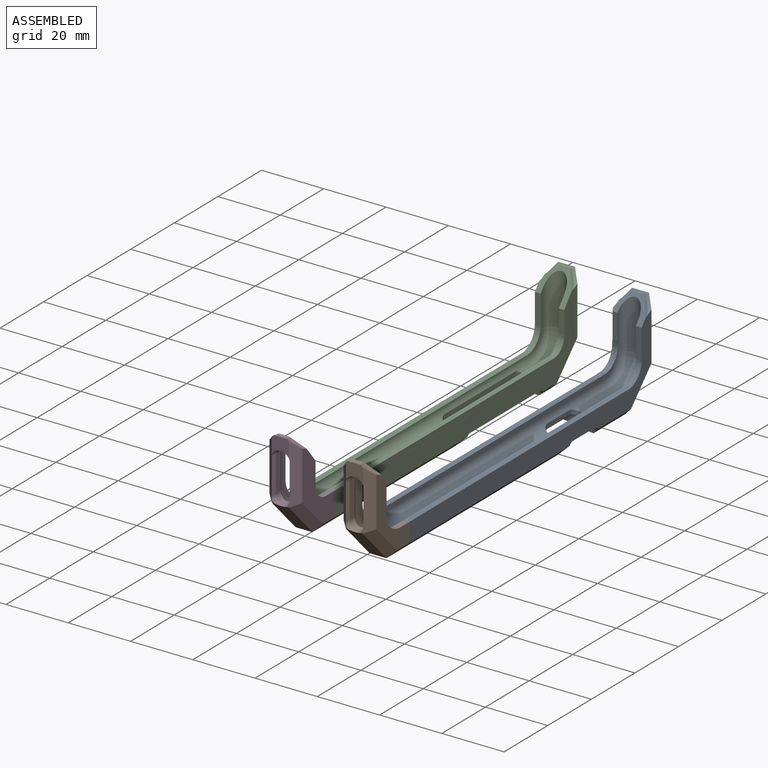
[diagram: assembled view]
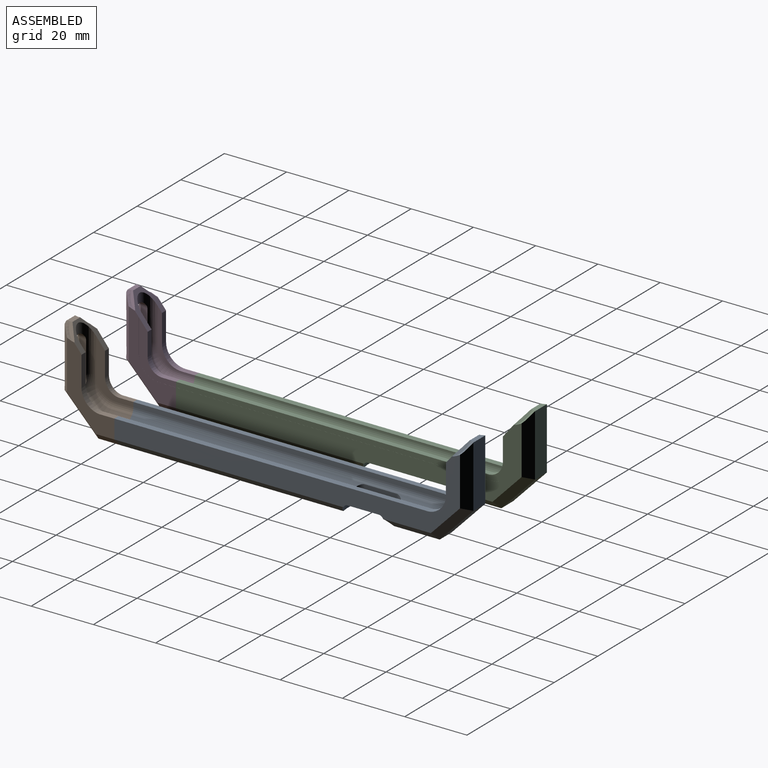
[diagram: assembled view, second angle]
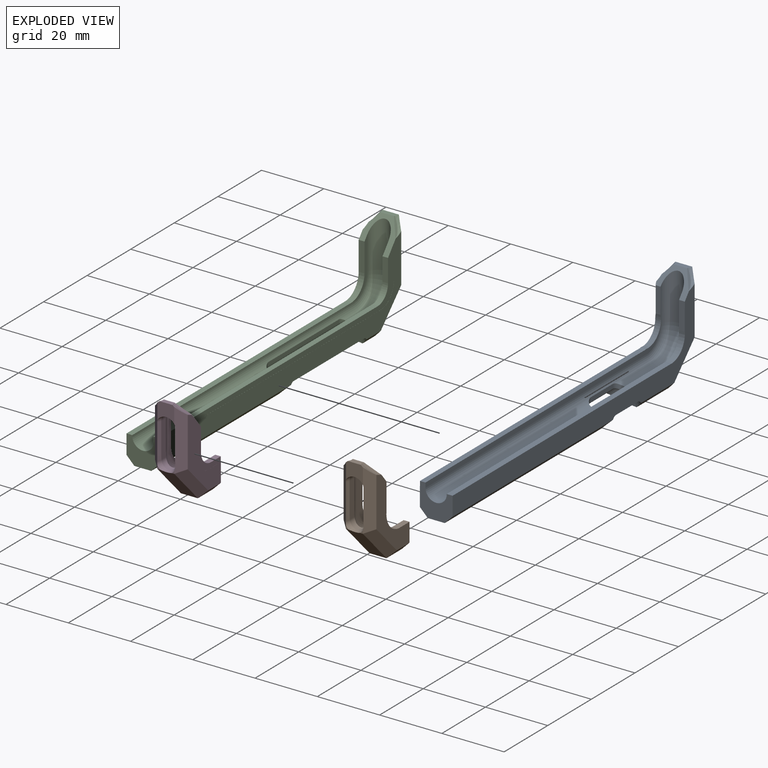
[diagram: exploded view]
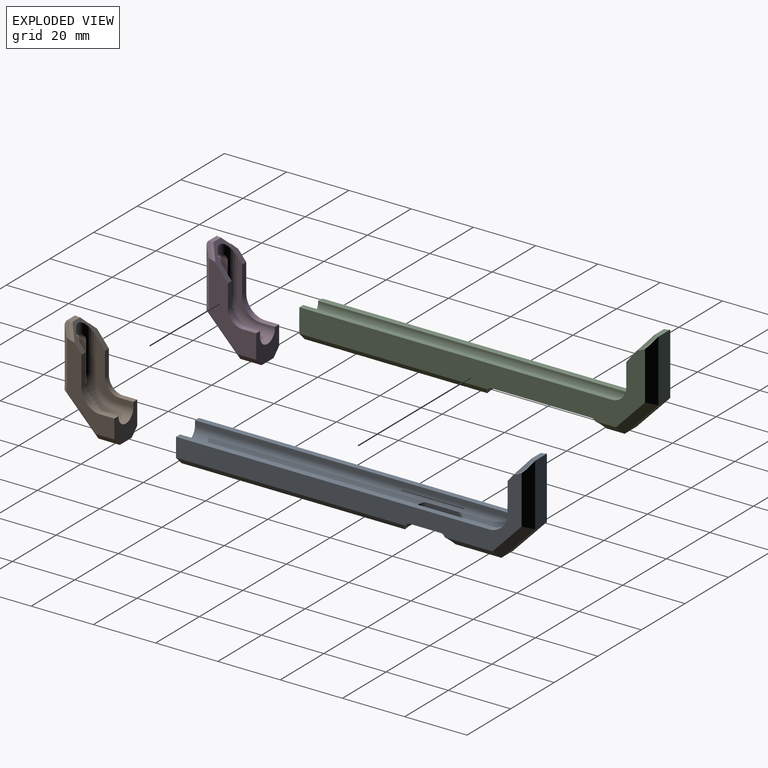
[diagram: exploded view, second angle]
ASSEMBLY  parts=4 mates=2
PART A: 58 faces, bbox 45.8x131.7x47.1 mm
  f0: plane 10.75x7.07mm, normal (-0.63,-0.78,0), area 27.3mm2, adj f1,f5,f6,f7,f8,f9,f15,f27
  f1: plane 107.74x17.21mm, normal (0,0,-1), area 24.9mm2, adj f0,f31,f32,f42,f50,f51,f52,f53
  f2: plane 15.59x6.28mm, normal (1,0,0), area 78.9mm2, adj f3,f19,f22,f23
  f3: plane 11.22x10.82mm, normal (0.69,0.72,0), area 84.7mm2, adj f2,f4,f18,f24
  f4: plane 19.84x5.44mm, normal (0,1,0), area 107.9mm2, adj f3,f7,f16,f17,f25
  f5: cylinder r=0.51mm len=8.54mm, axis (1,0,0), area 7mm2, adj f0,f9,f13,f28
  f6: plane 4.34x3.96mm, normal (-0.56,0,-0.83), area 4.9mm2, adj f0,f7,f26
  f7: plane 5.4x1.58mm, normal (-1,0,0), area 7.5mm2, adj f0,f4,f6,f8,f16,f25,f26
  f8: plane 4.39x4.01mm, normal (-0.56,0,0.83), area 5.1mm2, adj f0,f7,f16
  f9: plane 7.84x1.24mm, normal (0,-1,0), area 9.7mm2, adj f0,f5,f30,f31
  f10: cylinder r=0.51mm len=10.2mm, axis (0,-1,0), area 12.1mm2, adj f12,f14,f21,f33
  f11: cylinder r=0.51mm len=10.2mm, axis (0,-1,0), area 12.3mm2, adj f12,f14,f20,f35
  f12: bspline ~7.32x3.94mm, area 9.9mm2, adj f10,f11,f22,f36
  f13: bspline ~3.41x1.15mm, area 0.8mm2, adj f5,f29,f30,f57
  f14: bspline ~7.32x3.93mm, area 9.9mm2, adj f10,f11,f34,f39
  f15: bspline ~23.11x23.11mm, area 0.1mm2, adj f0,f16,f49
  f16: bspline ~23.11x23.11mm, area 5.8mm2, adj f4,f7,f8,f15,f17,f49
  f17: plane 19.78x2.54mm, normal (0,0.71,0.71), area 63mm2, adj f4,f16,f18,f49
  f18: plane 12.24x11.9mm, normal (0.49,0.51,0.71), area 52.2mm2, adj f3,f17,f19,f49
  f19: plane 16.98x3.13mm, normal (0.71,0,0.71), area 53.1mm2, adj f2,f18,f22,f49
  f20: plane 10.2x1.56mm, normal (0.72,0,-0.7), area 22.1mm2, adj f11,f22,f39,f49
  f21: plane 10.2x1.73mm, normal (0.69,0,0.73), area 24.3mm2, adj f10,f22,f39,f48
  f22: bspline ~16.25x7.94mm, area 45.7mm2, adj f2,f12,f19,f20,f21,f23,f48,f49
  f23: plane 17.36x3.2mm, normal (0.71,0,-0.71), area 53.6mm2, adj f2,f22,f24,f48
  f24: plane 12.24x11.9mm, normal (0.49,0.51,-0.71), area 52.2mm2, adj f3,f23,f25,f48
  f25: plane 19.84x2.54mm, normal (0,0.71,-0.71), area 63.3mm2, adj f4,f7,f24,f26,f48
  f26: bspline ~23.11x23.11mm, area 5.3mm2, adj f6,f7,f25,f27,f48
  f27: bspline ~23.11x23.11mm, area 0mm2, adj f0,f26,f28,f48
  f28: plane 8.54x0.06mm, normal (0,-0.99,-0.12), area 0.5mm2, adj f5,f27,f29,f48
  f29: bspline ~6.39x2.18mm, area 0.1mm2, adj f13,f28,f48,f57
  f30: cylinder r=4.1mm len=1.24mm, axis (0,0,1), area 0.4mm2, adj f9,f13,f31,f57
  f31: cylinder r=3.43mm len=15.1mm, axis (1,0,0), area 144.9mm2, adj f0,f1,f9,f30,f32,f57
  f32: torus R=6.37mm, axis (0,0,-1), area 144.5mm2, adj f1,f31,f42,f43,f57
  f33: plane 10.2x1.33mm, normal (0,0,1), area 13.6mm2, adj f10,f34,f36,f42
  f34: cylinder r=2.79mm len=5.59mm, axis (-1,0,0), area 11.4mm2, adj f14,f33,f35,f42
  f35: plane 10.2x1.39mm, normal (0,0,-1), area 14.2mm2, adj f11,f34,f36,f42
  f36: cylinder r=2.79mm len=5.59mm, axis (-1,0,0), area 11.4mm2, adj f12,f33,f35,f42
  f37: cylinder r=6.37mm len=6.33mm, axis (0,0,-1), area 0.2mm2, adj f41,f44,f48,f57
  f38: cylinder r=4.77mm len=1.78mm, axis (0,0,1), area 2.8mm2, adj f40,f41,f43,f57
  f39: bspline ~16.25x7.94mm, area 45.7mm2, adj f14,f20,f21,f45,f46,f47,f48,f49
  f40: plane 99.7x1.78mm, normal (-1,0,0), area 177.3mm2, adj f38,f41,f43,f50
  f41: plane 107.7x5.68mm, normal (0,0,-1), area 165mm2, adj f37,f38,f40,f44,f50,f57
  f42: cylinder r=3.43mm len=101.37mm, axis (0,-1,0), area 1024mm2, adj f1,f32,f33,f34,f35,f36,f43,f50
  f43: plane 107.7x5.68mm, normal (0,0,1), area 165mm2, adj f32,f38,f40,f42,f50,f57
  f44: plane 101.37x0.02mm, normal (-1,0,0), area 2.1mm2, adj f37,f41,f48,f50
  f45: plane 74.13x3.14mm, normal (0.71,0,0.71), area 260.3mm2, adj f39,f47,f49,f50
  f46: plane 74.51x3.2mm, normal (0.71,0,-0.71), area 260.8mm2, adj f39,f47,f48,f50
  f47: plane 72.74x6.29mm, normal (1,0,0), area 389.6mm2, adj f39,f45,f46,f50
  f48: plane 111.22x25.47mm, normal (0,0,-1), area 681mm2, adj f21,f22,f23,f24,f25,f26,f27,f28
  f49: plane 111.34x25.52mm, normal (0,0,1), area 682.3mm2, adj f15,f16,f17,f18,f19,f20,f22,f39
  f50: plane 10.52x10.11mm, normal (0,-1,0), area 68mm2, adj f1,f40,f41,f42,f43,f44,f45,f46
  f51: plane 99.61x1.87mm, normal (-1,0,0), area 186mm2, adj f1,f50,f53,f55,f56
  f52: plane 6.88x1.88mm, normal (0,-1,0), area 12.8mm2, adj f1,f53,f54,f56
  f53: cylinder r=6.27mm len=6.94mm, axis (0,0,1), area 20.9mm2, adj f1,f51,f52,f56
  f54: plane 1.89x1.88mm, normal (0,-1,0), area 3.5mm2, adj f0,f1,f52,f56
  f55: bspline ~0.09x0.04mm, area 0mm2, adj f50,f51,f56
  f56: plane 107.74x17.22mm, normal (0,0,1), area 25mm2, adj f0,f49,f51,f52,f53,f54,f55
  f57: cylinder r=5.92mm len=7.53mm, axis (0,0,-1), area 20.7mm2, adj f13,f29,f30,f31,f32,f37,f38,f41
PART B: 51 faces, bbox 39.8x36x47.2 mm
  f0: plane 17.45x11.89mm, normal (0,0,-1), area 22.2mm2, adj f13,f16,f17,f18,f44,f45,f46,f47
  f1: plane 25.55x15.24mm, normal (0,0,1), area 116.6mm2, adj f33,f35,f39,f40,f43,f44,f50
  f2: plane 5.7x5.46mm, normal (0,-1,0), area 24.1mm2, adj f7,f12,f34,f35,f42,f43
  f3: plane 1.07x0.98mm, normal (0,-1,0), area 0.4mm2, adj f5,f31,f43
  f4: plane 25.54x15.19mm, normal (0,0,-1), area 116.7mm2, adj f7,f8,f9,f10,f11,f37,f38,f42
  f5: plane 12.21x11.81mm, normal (0.69,-0.72,0), area 83.4mm2, adj f3,f31,f36,f38,f40,f41
  f6: plane 9.77x1.02mm, normal (0,-0.45,0.89), area 11.2mm2, adj f21,f32,f34,f42
  f7: bspline ~23.11x23.11mm, area 5.6mm2, adj f2,f4,f8,f12,f27,f42
  f8: bspline ~23.11x23.11mm, area 0.1mm2, adj f4,f7,f9,f13
  f9: plane 11.08x0.02mm, normal (0,1,0), area 0.2mm2, adj f4,f8,f10,f19
  f10: cylinder r=6.37mm len=6.37mm, axis (0,0,-1), area 0.2mm2, adj f4,f9,f11,f19
  f11: plane 5.52x0.02mm, normal (-1,0,0), area 0.1mm2, adj f4,f10,f19,f44
  f12: plane 4.13x1.79mm, normal (-1,0,0), area 6.5mm2, adj f2,f7,f13,f27,f28,f35
  f13: plane 10.5x8.54mm, normal (-0.63,0.78,0), area 32.4mm2, adj f0,f8,f12,f15,f16,f19,f24,f27
  f14: cylinder r=4.73mm len=1.78mm, axis (0,0,-1), area 1.5mm2, adj f15,f19,f24,f25
  f15: plane 17.45x11.89mm, normal (0,0,1), area 54.1mm2, adj f13,f14,f16,f17,f18,f24,f25,f26
  f16: cylinder r=3.43mm len=15.36mm, axis (-1,0,0), area 89.5mm2, adj f0,f13,f15,f17,f20,f21,f23
  f17: torus R=6.37mm, axis (0,0,-1), area 127.5mm2, adj f0,f15,f16,f18,f21,f22,f23
  f18: cylinder r=3.43mm len=6.85mm, axis (0,-1,0), area 59.4mm2, adj f0,f15,f17,f44
  f19: plane 17.45x11.89mm, normal (0,0,-1), area 54.1mm2, adj f9,f10,f11,f13,f14,f24,f25,f26
  f20: cylinder r=2.32mm len=4.65mm, axis (0,1,0), area 15.6mm2, adj f16,f21,f23,f34
  f21: plane 11.25x2.27mm, normal (0,0,1), area 24.1mm2, adj f6,f16,f17,f20,f22,f32
  f22: cylinder r=2.32mm len=4.65mm, axis (0,1,0), area 15.8mm2, adj f17,f21,f23,f31
  f23: plane 11.25x2.26mm, normal (0,0,-1), area 24.1mm2, adj f16,f17,f20,f22,f29,f30
  f24: plane 7.58x1.78mm, normal (0,1,0), area 13.5mm2, adj f13,f14,f15,f19
  f25: cylinder r=4.79mm len=4.14mm, axis (0,0,1), area 11mm2, adj f14,f15,f19,f26
  f26: plane 4.87x1.78mm, normal (-1,0,0), area 8.7mm2, adj f15,f19,f25,f44
  f27: plane 3.88x3.76mm, normal (-0.67,0,-0.75), area 5.7mm2, adj f7,f12,f13
  f28: plane 3.9x3.79mm, normal (-0.67,0,0.75), area 5.8mm2, adj f12,f13,f35
  f29: plane 9.77x1.07mm, normal (0,-0.45,-0.9), area 11.7mm2, adj f23,f30,f34,f43
  f30: cone r=11.03mm half-angle=63.5deg, axis (0,0,1), area 1.9mm2, adj f23,f29,f31,f43
  f31: bspline ~10.32x6.08mm, area 11.6mm2, adj f3,f5,f22,f30,f32,f41,f42,f43
  f32: cone r=11.02mm half-angle=63.4deg, axis (0,0,-1), area 1.8mm2, adj f6,f21,f31,f42
  f33: bspline ~23.11x23.11mm, area 0.2mm2, adj f1,f13,f35
  f34: bspline ~10.32x6.9mm, area 7.2mm2, adj f2,f6,f20,f29,f42,f43
  f35: bspline ~23.11x23.11mm, area 6mm2, adj f1,f2,f12,f28,f33,f43
  f36: plane 6.91x5.44mm, normal (1,0,0), area 37.5mm2, adj f5,f37,f39,f44
  f37: plane 6.91x2.54mm, normal (0.71,0,-0.71), area 22.9mm2, adj f4,f36,f38,f44
  f38: plane 12.24x11.9mm, normal (0.49,-0.51,-0.71), area 52.2mm2, adj f4,f5,f37,f42
  f39: plane 6.91x2.54mm, normal (0.71,0,0.71), area 22.9mm2, adj f1,f36,f40,f44
  f40: plane 12.24x11.9mm, normal (0.49,-0.51,0.71), area 52.2mm2, adj f1,f5,f39,f43
  f41: plane 0.9x0.89mm, normal (0,-1,0), area 0.3mm2, adj f5,f31,f42
  f42: plane 19.45x2.62mm, normal (0,-0.71,-0.71), area 60mm2, adj f2,f4,f6,f7,f31,f32,f34,f38
  f43: plane 19.35x2.61mm, normal (0,-0.71,0.71), area 60.8mm2, adj f1,f2,f3,f29,f30,f31,f34,f35
  f44: plane 10.52x10.11mm, normal (0,1,0), area 68mm2, adj f0,f1,f4,f11,f15,f18,f19,f26
  f45: plane 6.93x1.87mm, normal (0,1,0), area 12.9mm2, adj f0,f46,f48,f50
  f46: cylinder r=6.29mm len=6.93mm, axis (0,0,1), area 18.5mm2, adj f0,f45,f47,f50
  f47: plane 4.96x1.87mm, normal (-1,0,0), area 9.3mm2, adj f0,f44,f46,f49,f50
  f48: plane 1.87x1.87mm, normal (0,1,0), area 3.5mm2, adj f0,f13,f45,f50
  f49: bspline ~0.09x0.04mm, area 0mm2, adj f44,f47,f50
  f50: plane 17.45x11.9mm, normal (0,0,1), area 22.2mm2, adj f1,f13,f45,f46,f47,f48,f49
PART C: 203 faces, bbox 45.8x131.7x47.1 mm
  f0: plane 107.74x17.21mm, normal (0,0,-1), area 41.8mm2, adj f1,f2,f9,f28,f37,f197,f198,f199
  f1: plane 10.5x8.65mm, normal (0.63,-0.78,0), area 35.3mm2, adj f0,f7,f8,f24,f26,f28,f39,f41
  f2: plane 10.52x10.21mm, normal (0,-1,0), area 68.5mm2, adj f0,f3,f4,f5,f6,f7,f8,f9
  f3: plane 11.84x5.47mm, normal (-1,0,0), area 47.1mm2, adj f2,f4,f5,f64,f65,f66,f67,f68
  f4: plane 61.01x3.15mm, normal (-0.71,0,0.71), area 212.9mm2, adj f2,f3,f6,f13,f14,f15,f22,f54
  f5: plane 61.1x3.18mm, normal (-0.71,0,-0.71), area 212.6mm2, adj f2,f3,f12,f13,f14,f15,f16,f17
  f6: plane 111.3x25.48mm, normal (0,0,1), area 667mm2, adj f2,f4,f19,f21,f22,f23,f24,f48
  f7: plane 107.74x17.21mm, normal (0,0,-1), area 209.3mm2, adj f1,f2,f10,f11,f38,f39,f40,f44
  f8: plane 107.74x17.21mm, normal (0,0,1), area 209.3mm2, adj f1,f2,f9,f10,f28,f37,f38,f39
  f9: cylinder r=3.43mm len=101.37mm, axis (0,1,0), area 879.2mm2, adj f0,f2,f8,f29,f30,f31,f32,f37
  f10: plane 100.21x1.78mm, normal (1,0,0), area 178.2mm2, adj f2,f7,f8,f38
  f11: plane 101.37x0.02mm, normal (1,0,0), area 2.1mm2, adj f2,f7,f12,f45
  f12: plane 111.27x25.52mm, normal (0,0,-1), area 670.3mm2, adj f2,f5,f11,f21,f22,f27,f43,f44
  f13: plane 11.2x5.47mm, normal (-1,0,0), area 33.3mm2, adj f4,f5,f54,f55,f56,f57,f58,f59
  f14: plane 31.59x6.32mm, normal (-1,0,0), area 117.6mm2, adj f4,f5,f22,f90,f91,f92,f93,f94
  f15: plane 10.36x5.51mm, normal (-1,0,0), area 38mm2, adj f4,f5,f85,f86,f87,f88,f100,f101
  f16: plane 2.88x1.67mm, normal (-1,0,0), area 3.9mm2, adj f5,f185,f191,f192
  f17: plane 2.88x1.67mm, normal (-1,0,0), area 3.9mm2, adj f5,f171,f177,f178
  f18: plane 2.57x2.17mm, normal (-1,0,0), area 3.4mm2, adj f5,f153,f164,f165
  f19: bspline ~23.11x23.11mm, area 5.8mm2, adj f6,f24,f26,f42,f47,f50
  f20: plane 11.22x10.82mm, normal (-0.69,0.72,0), area 84.7mm2, adj f25,f47,f49,f52
  f21: bspline ~16.27x7.89mm, area 45.8mm2, adj f6,f12,f23,f25,f34,f46,f48,f51
  f22: bspline ~16.27x7.89mm, area 45.8mm2, adj f4,f5,f6,f12,f14,f23,f36,f46
  f23: plane 32.32x1.6mm, normal (-0.71,0,-0.7), area 73mm2, adj f6,f21,f22,f33
  f24: bspline ~23.11x23.11mm, area 0.1mm2, adj f1,f6,f19
  f25: plane 6.68x6.28mm, normal (-1,0,0), area 30.6mm2, adj f20,f21,f48,f51
  f26: plane 5.4x1.58mm, normal (1,0,0), area 7.5mm2, adj f1,f19,f27,f41,f42,f47,f53
  f27: bspline ~23.11x23.11mm, area 5.3mm2, adj f12,f26,f41,f43,f53
  f28: cylinder r=3.43mm len=15.1mm, axis (1,0,0), area 145.7mm2, adj f0,f1,f8,f37
  f29: cylinder r=2.8mm len=5.59mm, axis (1,0,0), area 11.4mm2, adj f9,f30,f32,f34
  f30: plane 32.32x1.37mm, normal (0,0,-1), area 44.2mm2, adj f9,f29,f31,f33
  f31: cylinder r=2.8mm len=5.59mm, axis (1,0,0), area 11.4mm2, adj f9,f30,f32,f36
  f32: plane 32.32x1.35mm, normal (0,0,1), area 43.6mm2, adj f9,f29,f31,f35
  f33: cylinder r=0.51mm len=32.32mm, axis (0,1,0), area 38.7mm2, adj f23,f30,f34,f36
  f34: bspline ~7.33x3.93mm, area 9.9mm2, adj f21,f29,f33,f35
  f35: cylinder r=0.51mm len=32.32mm, axis (0,1,0), area 38.5mm2, adj f32,f34,f36,f46
  f36: bspline ~7.33x3.94mm, area 9.9mm2, adj f22,f31,f33,f35
  f37: torus R=6.37mm, axis (0,0,-1), area 144.5mm2, adj f0,f8,f9,f28
  f38: cylinder r=4.76mm len=4.13mm, axis (0,0,-1), area 8.9mm2, adj f7,f8,f10,f40
  f39: plane 7.39x1.78mm, normal (0,-1,0), area 13.1mm2, adj f1,f7,f8,f40
  f40: cylinder r=4.73mm len=2.44mm, axis (0,0,1), area 4.6mm2, adj f7,f8,f38,f39
  f41: plane 4.34x3.96mm, normal (0.56,0,-0.83), area 4.9mm2, adj f1,f26,f27
  f42: plane 4.39x4.01mm, normal (0.56,0,0.83), area 5.1mm2, adj f1,f19,f26
  f43: bspline ~23.11x23.11mm, area 0mm2, adj f1,f12,f27,f44
  f44: plane 10.84x0.02mm, normal (0,-1,0), area 0.2mm2, adj f7,f12,f43,f45
  f45: cylinder r=6.37mm len=6.37mm, axis (0,0,-1), area 0.2mm2, adj f7,f11,f12,f44
  f46: plane 32.32x1.63mm, normal (-0.7,0,0.72), area 73.5mm2, adj f12,f21,f22,f35
  f47: plane 19.84x5.44mm, normal (0,1,0), area 107.9mm2, adj f19,f20,f26,f50,f53
  f48: plane 8.23x3.16mm, normal (-0.71,0,0.71), area 21.4mm2, adj f6,f21,f25,f49
  f49: plane 12.24x11.9mm, normal (-0.49,0.51,0.71), area 52.2mm2, adj f6,f20,f48,f50
  f50: plane 19.78x2.54mm, normal (0,0.71,0.71), area 63mm2, adj f6,f19,f47,f49
  f51: plane 8.31x3.17mm, normal (-0.71,0,-0.71), area 21.5mm2, adj f12,f21,f25,f52
  f52: plane 12.24x11.9mm, normal (-0.49,0.51,-0.71), area 52.2mm2, adj f12,f20,f51,f53
  f53: plane 19.84x2.54mm, normal (0,0.71,-0.71), area 63.3mm2, adj f12,f26,f27,f47,f52
  f54: extruded ~1.3x0.76mm, area 1mm2, adj f4,f13,f55,f73,f74
  f55: extruded ~1x0.76mm, area 0.9mm2, adj f13,f54,f56,f74
  f56: extruded ~0.97x0.76mm, area 0.8mm2, adj f13,f55,f57,f74
  f57: extruded ~1.1x0.76mm, area 1mm2, adj f13,f56,f58,f74
  f58: extruded ~1.05x0.76mm, area 0.9mm2, adj f13,f57,f59,f74
  f59: extruded ~0.76x0.59mm, area 0.5mm2, adj f13,f58,f60,f74
  f60: extruded ~1.29x0.89mm, area 1.4mm2, adj f13,f59,f61,f74
  f61: extruded ~1.53x0.76mm, area 1.2mm2, adj f13,f60,f62,f74
  f62: plane 0.76x0.66mm, normal (0,-1,0), area 0.5mm2, adj f13,f61,f63,f74
  f63: extruded ~1.53x0.76mm, area 1.2mm2, adj f5,f13,f62,f64,f74
  f64: extruded ~1.45x0.76mm, area 1.1mm2, adj f3,f5,f63,f65,f74
  f65: extruded ~1.11x0.76mm, area 1mm2, adj f3,f64,f66,f74
  f66: extruded ~0.89x0.76mm, area 0.7mm2, adj f3,f65,f67,f74
  f67: extruded ~1.21x0.76mm, area 1.1mm2, adj f3,f66,f68,f74
  f68: extruded ~1x0.76mm, area 0.9mm2, adj f3,f67,f69,f74
  f69: extruded ~0.76x0.6mm, area 0.5mm2, adj f3,f68,f70,f74
  f70: extruded ~1.08x0.77mm, area 1.2mm2, adj f3,f69,f71,f74
  f71: extruded ~1.33x0.76mm, area 1mm2, adj f3,f70,f72,f74
  f72: plane 0.76x0.61mm, normal (0,0.93,0.36), area 0.5mm2, adj f3,f71,f73,f74
  f73: extruded ~1.53x0.76mm, area 1.2mm2, adj f3,f4,f54,f72,f74
  f74: plane 5.54x3.49mm, normal (-1,0,0), area 7.3mm2, adj f54,f55,f56,f57,f58,f59,f60,f61
  f75: extruded ~1.32x0.76mm, area 1mm2, adj f5,f13,f76,f88,f89
  f76: plane 0.76x0.6mm, normal (0,1,0), area 0.5mm2, adj f13,f75,f77,f89
  f77: extruded ~1.21x0.76mm, area 0.9mm2, adj f13,f76,f78,f89
  f78: extruded ~1.29x0.76mm, area 1.1mm2, adj f13,f77,f79,f89
  f79: extruded ~1.61x0.76mm, area 1.3mm2, adj f13,f78,f80,f89
  f80: extruded ~1.58x0.76mm, area 1.3mm2, adj f13,f79,f81,f89
  f81: extruded ~1.27x0.76mm, area 1.1mm2, adj f13,f80,f82,f89
  f82: extruded ~1.12x0.76mm, area 0.9mm2, adj f13,f81,f83,f89
  f83: plane 0.76x0.58mm, normal (0,0.89,0.45), area 0.5mm2, adj f13,f82,f84,f89
  f84: extruded ~1.41x0.76mm, area 1.1mm2, adj f4,f13,f83,f85,f89
  f85: extruded ~1.8x0.76mm, area 1.5mm2, adj f4,f15,f84,f86,f89
  f86: extruded ~2.02x0.76mm, area 1.7mm2, adj f15,f85,f87,f89
  f87: extruded ~2.05x0.76mm, area 1.7mm2, adj f15,f86,f88,f89
  f88: extruded ~1.74x0.76mm, area 1.5mm2, adj f5,f15,f75,f87,f89
  f89: plane 5.54x3.88mm, normal (-1,0,0), area 6.6mm2, adj f75,f76,f77,f78,f79,f80,f81,f82
  f90: extruded ~1.3x0.76mm, area 1mm2, adj f4,f14,f91,f109,f110
  f91: extruded ~1x0.76mm, area 0.9mm2, adj f14,f90,f92,f110
  f92: extruded ~0.97x0.76mm, area 0.8mm2, adj f14,f91,f93,f110
  f93: extruded ~1.1x0.76mm, area 1mm2, adj f14,f92,f94,f110
  f94: extruded ~1.05x0.76mm, area 0.9mm2, adj f14,f93,f95,f110
  f95: extruded ~0.76x0.59mm, area 0.5mm2, adj f14,f94,f96,f110
  f96: extruded ~1.29x0.89mm, area 1.4mm2, adj f14,f95,f97,f110
  f97: extruded ~1.53x0.76mm, area 1.2mm2, adj f14,f96,f98,f110
  f98: plane 0.76x0.66mm, normal (0,-1,0), area 0.5mm2, adj f14,f97,f99,f110
  f99: extruded ~1.53x0.76mm, area 1.2mm2, adj f5,f14,f98,f100,f110
  f100: extruded ~1.45x0.76mm, area 1.1mm2, adj f5,f15,f99,f101,f110
  f101: extruded ~1.11x0.76mm, area 1mm2, adj f15,f100,f102,f110
  f102: extruded ~0.89x0.76mm, area 0.7mm2, adj f15,f101,f103,f110
  f103: extruded ~1.21x0.76mm, area 1.1mm2, adj f15,f102,f104,f110
  f104: extruded ~1x0.76mm, area 0.9mm2, adj f15,f103,f105,f110
  f105: extruded ~0.76x0.6mm, area 0.5mm2, adj f15,f104,f106,f110
  f106: extruded ~1.08x0.77mm, area 1.2mm2, adj f15,f105,f107,f110
  f107: extruded ~1.33x0.76mm, area 1mm2, adj f15,f106,f108,f110
  f108: plane 0.76x0.61mm, normal (0,0.93,0.36), area 0.5mm2, adj f15,f107,f109,f110
  f109: extruded ~1.53x0.76mm, area 1.2mm2, adj f4,f15,f90,f108,f110
  f110: plane 5.54x3.49mm, normal (-1,0,0), area 7.3mm2, adj f90,f91,f92,f93,f94,f95,f96,f97
  f111: extruded ~1.39x0.76mm, area 1.1mm2, adj f5,f14,f112,f120,f121
  f112: extruded ~1.27x0.76mm, area 1.1mm2, adj f14,f111,f113,f121
  f113: plane 3.73x0.76mm, normal (0,1,0), area 2.8mm2, adj f14,f112,f114,f121
  f114: plane 0.76x0.69mm, normal (0,0,-1), area 0.5mm2, adj f14,f113,f115,f121
  f115: plane 3.74x0.76mm, normal (0,-1,0), area 2.8mm2, adj f14,f114,f116,f121
  f116: extruded ~0.83x0.76mm, area 0.7mm2, adj f14,f115,f117,f121
  f117: extruded ~0.94x0.76mm, area 0.8mm2, adj f14,f116,f118,f121
  f118: extruded ~1.14x0.76mm, area 0.9mm2, adj f14,f117,f119,f121
  f119: plane 0.76x0.61mm, normal (0,-1,0), area 0.5mm2, adj f14,f118,f120,f121
  f120: extruded ~1.2x0.76mm, area 0.9mm2, adj f5,f14,f111,f119,f121
  f121: plane 5.47x3.1mm, normal (-1,0,0), area 4.9mm2, adj f111,f112,f113,f114,f115,f116,f117,f118
  f122: plane 5.39x0.76mm, normal (0,-1,0), area 4.1mm2, adj f14,f123,f133,f134
  f123: plane 3.1x0.76mm, normal (0,0,1), area 2.4mm2, adj f5,f122,f124,f134
  f124: plane 0.76x0.61mm, normal (0,1,0), area 0.5mm2, adj f14,f123,f125,f134
  f125: plane 2.42x0.76mm, normal (0,0,-1), area 1.8mm2, adj f14,f124,f126,f134
  f126: plane 1.92x0.76mm, normal (0,1,0), area 1.5mm2, adj f14,f125,f127,f134
  f127: plane 2.28x0.76mm, normal (0,0,1), area 1.7mm2, adj f14,f126,f128,f134
  f128: plane 0.76x0.6mm, normal (0,1,0), area 0.5mm2, adj f14,f127,f129,f134
  f129: plane 2.28x0.76mm, normal (0,0,-1), area 1.7mm2, adj f14,f128,f130,f134
  f130: plane 1.67x0.76mm, normal (0,1,0), area 1.3mm2, adj f14,f129,f131,f134
  f131: plane 2.42x0.76mm, normal (0,0,1), area 1.8mm2, adj f14,f130,f132,f134
  f132: plane 0.76x0.61mm, normal (0,1,0), area 0.5mm2, adj f14,f131,f133,f134
  f133: plane 3.1x0.76mm, normal (0,0,-1), area 2.4mm2, adj f14,f122,f132,f134
  f134: plane 5.39x3.1mm, normal (-1,0,0), area 8mm2, adj f122,f123,f124,f125,f126,f127,f128,f129
  f135: plane 1.95x0.76mm, normal (0,1,0.08), area 1.5mm2, adj f14,f136,f138,f139
  f136: plane 0.87x0.76mm, normal (0,0,-1), area 0.7mm2, adj f14,f135,f137,f139
  f137: plane 1.95x0.76mm, normal (0,-1,0.08), area 1.5mm2, adj f14,f136,f138,f139
  f138: plane 0.76x0.57mm, normal (0,0,1), area 0.4mm2, adj f14,f135,f137,f139
  f139: plane 1.95x0.87mm, normal (-1,0,0), area 1.4mm2, adj f135,f136,f137,f138
  f140: plane 5.39x0.76mm, normal (0,-1,0), area 4.1mm2, adj f3,f141,f151,f152
  f141: plane 3.1x0.76mm, normal (0,0,1), area 2.4mm2, adj f5,f140,f142,f152
  f142: plane 0.76x0.61mm, normal (0,1,0), area 0.5mm2, adj f3,f141,f143,f152
  f143: plane 2.42x0.76mm, normal (0,0,-1), area 1.8mm2, adj f3,f142,f144,f152
  f144: plane 1.92x0.76mm, normal (0,1,0), area 1.5mm2, adj f3,f143,f145,f152
  f145: plane 2.28x0.76mm, normal (0,0,1), area 1.7mm2, adj f3,f144,f146,f152
  f146: plane 0.76x0.6mm, normal (0,1,0), area 0.5mm2, adj f3,f145,f147,f152
  f147: plane 2.28x0.76mm, normal (0,0,-1), area 1.7mm2, adj f3,f146,f148,f152
  f148: plane 1.67x0.76mm, normal (0,1,0), area 1.3mm2, adj f3,f147,f149,f152
  f149: plane 2.42x0.76mm, normal (0,0,1), area 1.8mm2, adj f3,f148,f150,f152
  f150: plane 0.76x0.61mm, normal (0,1,0), area 0.5mm2, adj f3,f149,f151,f152
  f151: plane 3.1x0.76mm, normal (0,0,-1), area 2.4mm2, adj f3,f140,f150,f152
  f152: plane 5.39x3.1mm, normal (-1,0,0), area 8mm2, adj f140,f141,f142,f143,f144,f145,f146,f147
  f153: plane 2.57x1.66mm, normal (0,-0.84,0.54), area 2.3mm2, adj f18,f154,f165,f166
  f154: plane 0.78x0.76mm, normal (0,0,1), area 0.6mm2, adj f5,f153,f155,f166
  f155: plane 3.04x1.99mm, normal (0,0.84,-0.55), area 2.8mm2, adj f14,f154,f156,f166
  f156: plane 2.35x1.92mm, normal (0,0.77,0.63), area 2.3mm2, adj f14,f155,f157,f166
  f157: plane 0.77x0.76mm, normal (0,0,-1), area 0.6mm2, adj f14,f156,f158,f166
  f158: plane 2.08x1.67mm, normal (0,-0.78,-0.63), area 2mm2, adj f14,f157,f159,f166
  f159: plane 0.76x0.62mm, normal (0,-0.81,-0.58), area 0.6mm2, adj f14,f158,f160,f166
  f160: plane 2.7x0.76mm, normal (0,1,0), area 2.1mm2, adj f14,f159,f161,f166
  f161: plane 0.76x0.69mm, normal (0,0,-1), area 0.5mm2, adj f14,f160,f162,f166
  f162: plane 5.39x0.76mm, normal (0,-1,0), area 4.1mm2, adj f14,f161,f163,f166
  f163: plane 0.76x0.69mm, normal (0,0,1), area 0.5mm2, adj f5,f162,f164,f166
  f164: plane 2.15x0.76mm, normal (0,1,0), area 1.6mm2, adj f18,f163,f165,f166
  f165: plane 0.76x0.52mm, normal (0,0.63,0.78), area 0.5mm2, adj f18,f153,f164,f166
  f166: plane 5.39x3.64mm, normal (-1,0,0), area 8mm2, adj f153,f154,f155,f156,f157,f158,f159,f160
  f167: plane 1.56x0.76mm, normal (0,-0.95,0.3), area 1.2mm2, adj f168,f179,f180,f195
  f168: plane 1.42x0.76mm, normal (0,0,-1), area 1.1mm2, adj f167,f169,f180,f195
  f169: plane 1.72x0.76mm, normal (0,0.96,0.29), area 1.4mm2, adj f168,f170,f180,f195
  f170: extruded ~0.76x0.68mm, area 0.5mm2, adj f169,f179,f180,f195
  f171: plane 1.67x0.76mm, normal (0,-0.95,0.3), area 1.3mm2, adj f17,f172,f178,f180
  f172: plane 0.76x0.71mm, normal (0,0,1), area 0.5mm2, adj f5,f171,f173,f180
  f173: plane 5.41x1.79mm, normal (0,0.95,-0.31), area 4.3mm2, adj f14,f172,f174,f180
  f174: plane 0.76x0.72mm, normal (0,0,-1), area 0.5mm2, adj f14,f173,f175,f180
  f175: plane 5.41x1.78mm, normal (0,-0.95,-0.31), area 4.3mm2, adj f14,f174,f176,f180
  f176: plane 0.76x0.7mm, normal (0,0,1), area 0.5mm2, adj f5,f175,f177,f180
  f177: plane 1.67x0.76mm, normal (0,0.95,0.31), area 1.3mm2, adj f17,f176,f178,f180
  f178: plane 1.81x0.76mm, normal (0,0,1), area 1.4mm2, adj f17,f171,f177,f180
  f179: extruded ~0.83x0.76mm, area 0.7mm2, adj f167,f170,f180,f195
  f180: plane 5.41x4.29mm, normal (-1,0,0), area 8mm2, adj f167,f168,f169,f170,f171,f172,f173,f174
  f181: plane 1.56x0.76mm, normal (0,-0.95,0.3), area 1.2mm2, adj f182,f193,f194,f196
  f182: plane 1.42x0.76mm, normal (0,0,-1), area 1.1mm2, adj f181,f183,f194,f196
  f183: plane 1.72x0.76mm, normal (0,0.96,0.29), area 1.4mm2, adj f182,f184,f194,f196
  f184: extruded ~0.76x0.68mm, area 0.5mm2, adj f183,f193,f194,f196
  f185: plane 1.67x0.76mm, normal (0,-0.95,0.3), area 1.3mm2, adj f16,f186,f192,f194
  f186: plane 0.76x0.71mm, normal (0,0,1), area 0.5mm2, adj f5,f185,f187,f194
  f187: plane 5.41x1.79mm, normal (0,0.95,-0.31), area 4.3mm2, adj f13,f186,f188,f194
  f188: plane 0.76x0.72mm, normal (0,0,-1), area 0.5mm2, adj f13,f187,f189,f194
  f189: plane 5.41x1.78mm, normal (0,-0.95,-0.31), area 4.3mm2, adj f13,f188,f190,f194
  f190: plane 0.76x0.7mm, normal (0,0,1), area 0.5mm2, adj f5,f189,f191,f194
  f191: plane 1.67x0.76mm, normal (0,0.95,0.31), area 1.3mm2, adj f16,f190,f192,f194
  f192: plane 1.81x0.76mm, normal (0,0,1), area 1.4mm2, adj f16,f185,f191,f194
  f193: extruded ~0.83x0.76mm, area 0.7mm2, adj f181,f184,f194,f196
  f194: plane 5.41x4.29mm, normal (-1,0,0), area 8mm2, adj f181,f182,f183,f184,f185,f186,f187,f188
  f195: plane 2.4x1.42mm, normal (-1,0,0), area 1.6mm2, adj f167,f168,f169,f170,f179
  f196: plane 2.4x1.42mm, normal (-1,0,0), area 1.6mm2, adj f181,f182,f183,f184,f193
  f197: plane 7.4x1.88mm, normal (0,-1,0), area 13.8mm2, adj f0,f199,f200,f202
  f198: plane 100.29x1.87mm, normal (1,0,0), area 187.2mm2, adj f0,f2,f199,f201,f202
  f199: cylinder r=6.23mm len=6.23mm, axis (0,0,1), area 18.3mm2, adj f0,f197,f198,f202
  f200: plane 1.89x1.88mm, normal (0,-1,0), area 3.5mm2, adj f0,f1,f197,f202
  f201: bspline ~0.2x0.09mm, area 0mm2, adj f2,f198,f202
  f202: plane 107.74x17.22mm, normal (0,0,1), area 41.8mm2, adj f1,f6,f197,f198,f199,f200,f201
PART D: 50 faces, bbox 39.8x36x47.2 mm
  f0: plane 17.17x11.89mm, normal (0,0,-1), area 23.9mm2, adj f1,f24,f25,f26,f37,f44,f45,f46
  f1: plane 10.52x10.21mm, normal (0,1,0), area 68.5mm2, adj f0,f34,f35,f36,f37,f38,f39,f40
  f2: plane 9.77x1.07mm, normal (0,-0.45,-0.9), area 11.7mm2, adj f3,f8,f14,f20
  f3: cone r=11.03mm half-angle=63.5deg, axis (0,0,1), area 1.9mm2, adj f2,f8,f11,f20
  f4: plane 1.07x0.98mm, normal (0,-1,0), area 0.4mm2, adj f11,f20,f21
  f5: plane 3.71x3.61mm, normal (0.67,0,0.75), area 4.5mm2, adj f15,f19,f24
  f6: cylinder r=2.32mm len=4.65mm, axis (0,1,0), area 15.6mm2, adj f8,f9,f14,f25
  f7: cylinder r=2.32mm len=4.65mm, axis (0,1,0), area 15.8mm2, adj f8,f9,f11,f26
  f8: plane 11.25x2.26mm, normal (0,0,-1), area 24.1mm2, adj f2,f3,f6,f7,f25,f26
  f9: plane 11.25x2.27mm, normal (0,0,1), area 24.1mm2, adj f6,f7,f12,f13,f25,f26
  f10: plane 0.9x0.88mm, normal (0,-1,0), area 0.3mm2, adj f11,f21,f29
  f11: bspline ~10.32x6.08mm, area 11.6mm2, adj f3,f4,f7,f10,f12,f20,f21,f29
  f12: cone r=11.02mm half-angle=63.4deg, axis (0,0,-1), area 1.8mm2, adj f9,f11,f13,f29
  f13: plane 9.77x1.02mm, normal (0,-0.45,0.89), area 11.2mm2, adj f9,f12,f14,f29
  f14: bspline ~10.32x6.9mm, area 7.2mm2, adj f2,f6,f13,f17,f20,f29
  f15: plane 4.13x1.52mm, normal (1,0,0), area 5.6mm2, adj f5,f16,f17,f19,f24,f30
  f16: plane 3.68x3.58mm, normal (0.67,0,-0.75), area 4.4mm2, adj f15,f24,f30
  f17: plane 5.7x5.46mm, normal (0,-1,0), area 24.1mm2, adj f14,f15,f19,f20,f29,f30
  f18: bspline ~23.11x23.11mm, area 0.4mm2, adj f19,f24,f43
  f19: bspline ~23.11x23.11mm, area 5.9mm2, adj f5,f15,f17,f18,f20,f43
  f20: plane 19.35x2.6mm, normal (0,-0.71,0.71), area 60.8mm2, adj f2,f3,f4,f11,f14,f17,f19,f22
  f21: plane 12.21x11.81mm, normal (-0.69,-0.72,0), area 83.4mm2, adj f4,f10,f11,f22,f28,f42
  f22: plane 12.24x11.9mm, normal (-0.49,-0.51,0.71), area 52.2mm2, adj f20,f21,f34,f43
  f23: plane 7.35x1.78mm, normal (0,1,0), area 13.1mm2, adj f24,f27,f39,f40
  f24: plane 10.5x8.78mm, normal (0.63,0.78,0), area 36.4mm2, adj f0,f5,f15,f16,f18,f23,f25,f31
  f25: cylinder r=3.43mm len=15.04mm, axis (-1,0,0), area 86.2mm2, adj f0,f6,f8,f9,f24,f26,f39
  f26: torus R=6.37mm, axis (0,0,-1), area 127.5mm2, adj f0,f7,f8,f9,f25,f37,f39
  f27: cylinder r=4.73mm len=4.73mm, axis (0,0,-1), area 13.2mm2, adj f23,f38,f39,f40
  f28: plane 12.24x11.9mm, normal (-0.49,-0.51,-0.71), area 52.2mm2, adj f21,f29,f35,f41
  f29: plane 19.45x2.63mm, normal (0,-0.71,-0.71), area 60mm2, adj f10,f11,f12,f13,f14,f17,f28,f30
  f30: bspline ~23.11x23.11mm, area 5.5mm2, adj f15,f16,f17,f29,f31,f35
  f31: bspline ~23.11x23.11mm, area 0.2mm2, adj f24,f30,f32,f35
  f32: plane 10.8x0.02mm, normal (0,1,0), area 0.2mm2, adj f31,f33,f35,f40
  f33: cylinder r=6.37mm len=6.37mm, axis (0,0,-1), area 0.2mm2, adj f32,f35,f36,f40
  f34: plane 6.91x2.54mm, normal (-0.71,0,0.71), area 22.9mm2, adj f1,f22,f42,f43
  f35: plane 25.54x15.19mm, normal (0,0,-1), area 116.3mm2, adj f1,f28,f29,f30,f31,f32,f33,f36
  f36: plane 5.52x0.02mm, normal (1,0,0), area 0.1mm2, adj f1,f33,f35,f40
  f37: cylinder r=3.43mm len=6.85mm, axis (0,1,0), area 59.4mm2, adj f0,f1,f26,f39
  f38: plane 4.36x1.78mm, normal (1,0,0), area 7.8mm2, adj f1,f27,f39,f40
  f39: plane 17.17x11.89mm, normal (0,0,1), area 54.3mm2, adj f1,f23,f24,f25,f26,f27,f37,f38
  f40: plane 17.17x11.89mm, normal (0,0,-1), area 54.3mm2, adj f1,f23,f24,f27,f32,f33,f36,f38
  f41: plane 6.91x2.54mm, normal (-0.71,0,-0.71), area 22.9mm2, adj f1,f28,f35,f42
  f42: plane 6.91x5.44mm, normal (-1,0,0), area 37.5mm2, adj f1,f21,f34,f41
  f43: plane 25.59x15.28mm, normal (0,0,1), area 116.2mm2, adj f1,f18,f19,f20,f22,f34,f49
  f44: plane 4.28x1.87mm, normal (1,0,0), area 8mm2, adj f0,f1,f45,f48,f49
  f45: cylinder r=6.26mm len=6.26mm, axis (0,0,1), area 18.4mm2, adj f0,f44,f46,f49
  f46: plane 7.21x1.87mm, normal (0,1,0), area 13.5mm2, adj f0,f45,f47,f49
  f47: plane 1.87x1.85mm, normal (0,1,0), area 3.4mm2, adj f0,f24,f46,f49
  f48: bspline ~0.19x0.09mm, area 0mm2, adj f1,f44,f49
  f49: plane 17.18x11.9mm, normal (0,0,1), area 23.8mm2, adj f24,f43,f44,f45,f46,f47,f48
PLACE A rot(axis=(0,1,0),90deg) t=(20.57,5.11,38.7)mm
PLACE B rot(axis=(0,1,0),90deg) t=(20.57,19.08,38.7)mm
PLACE C rot(axis=(0,-1,0),90deg) t=(4.97,7.21,38.7)mm
PLACE D rot(axis=(0,-1,0),90deg) t=(4.97,21.18,38.7)mm
MATE fastened D.f1 <-> C.f2  axis (0,1,0) through (0.29,-33.73,4.09)mm
MATE fastened A.f50 <-> B.f44  axis (0,-1,0) through (25.24,-35.83,4.05)mm
